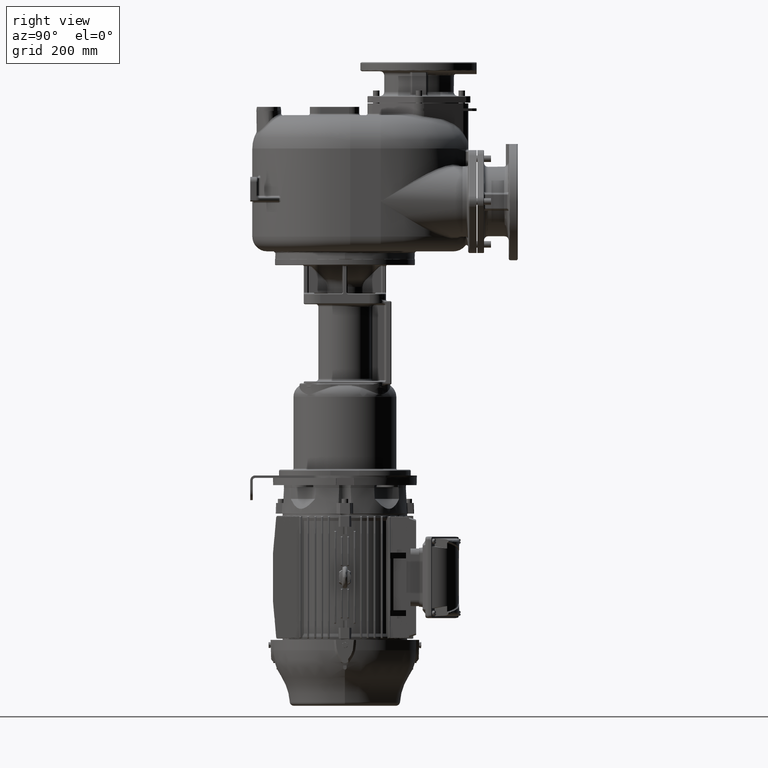
[diagram: clean part render]
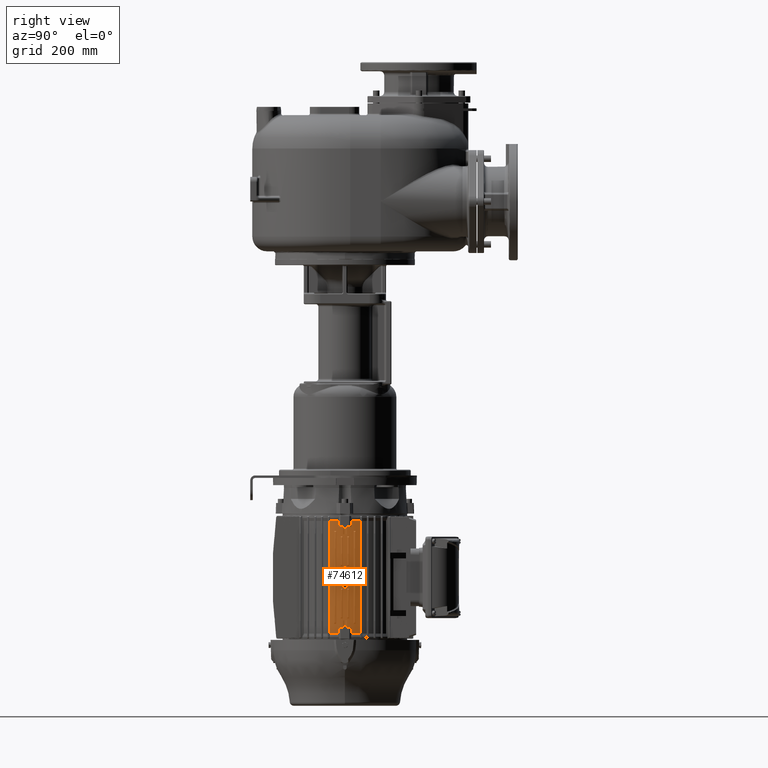
[diagram: same view with one face highlighted and labeled with its STEP entity id]
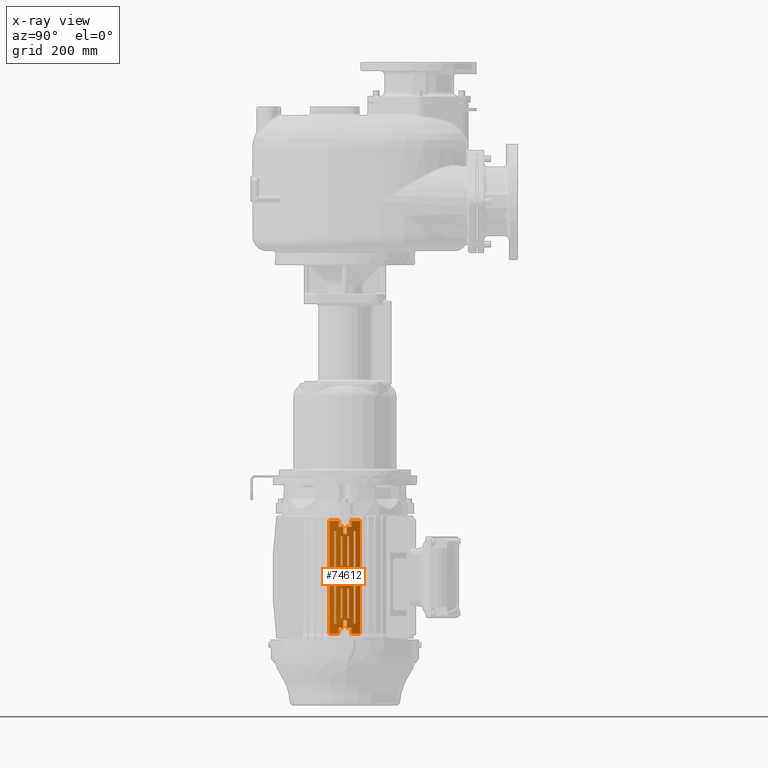
[diagram: x-ray of the same camera — body ghosted, the highlighted face saturated]
A machine part, right view. The second image highlights one B-rep face of the part: STEP entity #74612.
The next image is the same camera in x-ray: the body ghosted, the highlighted face saturated — about 0% of this face is hidden behind the body in this view.
In plain terms, the highlighted cylindrical surface (partial cylindrical patch) has radius 149.5 mm, axis along (0, 0, -1).
Its self-contained STEP definition (entity closure, byte-faithful):
#13514=CARTESIAN_POINT('',(0.E0,2.29E2,-1.084966056846E3));
#13515=DIRECTION('',(0.E0,0.E0,-1.E0));
#13516=DIRECTION('',(9.945120519929E-1,-1.046220743477E-1,0.E0));
#13517=AXIS2_PLACEMENT_3D('',#13514,#13515,#13516);
#13524=CARTESIAN_POINT('',(1.486795517729E2,2.133589998850E2,
-1.084966056846E3));
#13538=DIRECTION('',(0.E0,0.E0,-1.E0));
#13539=VECTOR('',#13538,1.426605684588E1);
#13540=CARTESIAN_POINT('',(1.486795517729E2,2.446410001150E2,-1.0707E3));
#13541=LINE('',#13540,#13539);
#13542=DIRECTION('',(0.E0,0.E0,1.E0));
#13543=VECTOR('',#13542,1.426605684588E1);
#13544=CARTESIAN_POINT('',(1.486795517729E2,2.133589998850E2,
-1.084966056846E3));
#13545=LINE('',#13544,#13543);
#13546=DIRECTION('',(0.E0,0.E0,-1.E0));
#13547=VECTOR('',#13546,2.739321136918E2);
#13548=CARTESIAN_POINT('',(1.448180231175E2,1.918787098778E2,
-8.110339431541E2));
#13549=LINE('',#13548,#13547);
#13550=DIRECTION('',(0.E0,0.E0,1.E0));
#13551=VECTOR('',#13550,1.426605684588E1);
#13552=CARTESIAN_POINT('',(1.486795517729E2,2.133589998850E2,-8.253E2));
#13553=LINE('',#13552,#13551);
#13554=DIRECTION('',(0.E0,0.E0,1.E0));
#13555=VECTOR('',#13554,1.8E1);
#13556=CARTESIAN_POINT('',(1.494283489097E2,2.243719829156E2,-8.433E2));
#13557=LINE('',#13556,#13555);
#13558=DIRECTION('',(0.E0,0.E0,-1.E0));
#13559=VECTOR('',#13558,1.8E1);
#13560=CARTESIAN_POINT('',(1.494283489097E2,2.336280170844E2,-8.253E2));
#13561=LINE('',#13560,#13559);
#13562=DIRECTION('',(0.E0,0.E0,-1.E0));
#13563=VECTOR('',#13562,1.426605684588E1);
#13564=CARTESIAN_POINT('',(1.486795517729E2,2.446410001150E2,
-8.110339431541E2));
#13565=LINE('',#13564,#13563);
#13566=DIRECTION('',(0.E0,0.E0,1.E0));
#13567=VECTOR('',#13566,2.739321136918E2);
#13568=CARTESIAN_POINT('',(1.448180231175E2,2.661212901222E2,
-1.084966056846E3));
#13569=LINE('',#13568,#13567);
#13570=DIRECTION('',(0.E0,0.E0,-1.E0));
#13571=VECTOR('',#13570,7.172442220392E1);
#13572=CARTESIAN_POINT('',(1.493969431341E2,2.234499205249E2,-8.485E2));
#13573=LINE('',#13572,#13571);
#13574=DIRECTION('',(0.E0,0.E0,1.E0));
#13575=VECTOR('',#13574,7.174607287128E1);
#13576=CARTESIAN_POINT('',(1.491494748738E2,2.187684729948E2,
-9.202460728713E2));
#13577=LINE('',#13576,#13575);
#13578=DIRECTION('',(0.E0,0.E0,-1.E0));
#13579=VECTOR('',#13578,7.174607287128E1);
#13580=CARTESIAN_POINT('',(1.491494748738E2,2.392315270052E2,-8.485E2));
#13581=LINE('',#13580,#13579);
#13582=DIRECTION('',(0.E0,0.E0,1.E0));
#13583=VECTOR('',#13582,7.172442220392E1);
#13584=CARTESIAN_POINT('',(1.493969431341E2,2.345500794751E2,
-9.202244222039E2));
#13585=LINE('',#13584,#13583);
#13586=DIRECTION('',(0.E0,0.E0,1.E0));
#13587=VECTOR('',#13586,7.174607287128E1);
#13588=CARTESIAN_POINT('',(1.491494748738E2,2.187684729948E2,-1.0475E3));
#13589=LINE('',#13588,#13587);
#13590=DIRECTION('',(0.E0,0.E0,-1.E0));
#13591=VECTOR('',#13590,7.172442220392E1);
#13592=CARTESIAN_POINT('',(1.493969431341E2,2.234499205249E2,
-9.757755777961E2));
#13593=LINE('',#13592,#13591);
#13594=DIRECTION('',(0.E0,0.E0,1.E0));
#13595=VECTOR('',#13594,7.172442220392E1);
#13596=CARTESIAN_POINT('',(1.493969431341E2,2.345500794751E2,-1.0475E3));
#13597=LINE('',#13596,#13595);
#13598=DIRECTION('',(0.E0,0.E0,-1.E0));
#13599=VECTOR('',#13598,7.174607287128E1);
#13600=CARTESIAN_POINT('',(1.491494748738E2,2.392315270052E2,
-9.757539271287E2));
#13601=LINE('',#13600,#13599);
#13602=DIRECTION('',(0.E0,0.E0,1.E0));
#13603=VECTOR('',#13602,2.622055537209E1);
#13604=CARTESIAN_POINT('',(1.487767269245E2,2.143120618995E2,
-9.611102776860E2));
#13605=LINE('',#13604,#13603);
#13606=CARTESIAN_POINT('',(1.487767269245E2,2.436879381005E2,
-9.611102776860E2));
#13607=CARTESIAN_POINT('',(1.487873028285E2,2.435808128948E2,
-9.612289045936E2));
#13608=CARTESIAN_POINT('',(1.488085030701E2,2.433637060167E2,
-9.614635083399E2));
#13609=CARTESIAN_POINT('',(1.488404010850E2,2.430293816895E2,
-9.618075622012E2));
#13610=CARTESIAN_POINT('',(1.488723134301E2,2.426866624096E2,
-9.621434696467E2));
#13611=CARTESIAN_POINT('',(1.489041620329E2,2.423357732816E2,
-9.624710051180E2));
#13612=CARTESIAN_POINT('',(1.489358712476E2,2.419769199331E2,
-9.627899714574E2));
#13613=CARTESIAN_POINT('',(1.489673647090E2,2.416103253593E2,
-9.631001662790E2));
#13614=CARTESIAN_POINT('',(1.489985664947E2,2.412362197539E2,
-9.634013923824E2));
#13615=CARTESIAN_POINT('',(1.490294014444E2,2.408548389919E2,
-9.636934591088E2));
#13616=CARTESIAN_POINT('',(1.490597953976E2,2.404664239788E2,
-9.639761828662E2));
#13617=CARTESIAN_POINT('',(1.490896754832E2,2.400712191108E2,
-9.642493880976E2));
#13618=CARTESIAN_POINT('',(1.491189702110E2,2.396694731708E2,
-9.645129064344E2));
#13619=CARTESIAN_POINT('',(1.491476097552E2,2.392614376410E2,
-9.647665776893E2));
#13620=CARTESIAN_POINT('',(1.491755260073E2,2.388473678436E2,
-9.650102487670E2));
#13621=CARTESIAN_POINT('',(1.492026527111E2,2.384275238543E2,
-9.652437735503E2));
#13622=CARTESIAN_POINT('',(1.492289263352E2,2.380021569897E2,
-9.654670187553E2));
#13623=CARTESIAN_POINT('',(1.492542827104E2,2.375715714713E2,
-9.656798347487E2));
#13624=CARTESIAN_POINT('',(1.492786683693E2,2.371359281508E2,
-9.658821488084E2));
#13625=CARTESIAN_POINT('',(1.493020176074E2,2.366956440133E2,
-9.660737726124E2));
#13626=CARTESIAN_POINT('',(1.493242525003E2,2.362514846123E2,
-9.662544088734E2));
#13627=CARTESIAN_POINT('',(1.493453165151E2,2.358039600869E2,
-9.664239248941E2));
#13628=CARTESIAN_POINT('',(1.493651985988E2,2.353526437920E2,
-9.665825334887E2));
#13629=CARTESIAN_POINT('',(1.493838705018E2,2.348973686132E2,
-9.667302842246E2));
#13630=CARTESIAN_POINT('',(1.494012742101E2,2.344387493659E2,
-9.668669746612E2));
#13631=CARTESIAN_POINT('',(1.494173860486E2,2.339766026607E2,
-9.669926563414E2));
#13632=CARTESIAN_POINT('',(1.494321712100E2,2.335109886444E2,
-9.671072736853E2));
#13633=CARTESIAN_POINT('',(1.494455795677E2,2.330425603153E2,
-9.672106361926E2));
#13634=CARTESIAN_POINT('',(1.494575694900E2,2.325719896885E2,
-9.673026034525E2));
#13635=CARTESIAN_POINT('',(1.494681199610E2,2.320993394828E2,
-9.673831748948E2));
#13636=CARTESIAN_POINT('',(1.494772052532E2,2.316249558014E2,
-9.674522942966E2));
#13637=CARTESIAN_POINT('',(1.494848056460E2,2.311490896034E2,
-9.675099320109E2));
#13638=CARTESIAN_POINT('',(1.494909041068E2,2.306720137247E2,
-9.675560591138E2));
#13639=CARTESIAN_POINT('',(1.494954871082E2,2.301939961403E2,
-9.675906534779E2));
#13640=CARTESIAN_POINT('',(1.494985444551E2,2.297153091516E2,
-9.676136982515E2));
#13641=CARTESIAN_POINT('',(1.495000693847E2,2.292362164821E2,
-9.676251824836E2));
#13642=CARTESIAN_POINT('',(1.495000585380E2,2.287569786725E2,
-9.676251008218E2));
#13643=CARTESIAN_POINT('',(1.494985116295E2,2.282779284107E2,
-9.676134509679E2));
#13644=CARTESIAN_POINT('',(1.494954370776E2,2.277998757445E2,
-9.675902761272E2));
#13645=CARTESIAN_POINT('',(1.494908458874E2,2.273228942670E2,
-9.675556192015E2));
#13646=CARTESIAN_POINT('',(1.494847478157E2,2.268469852345E2,
-9.675094939702E2));
#13647=CARTESIAN_POINT('',(1.494771601440E2,2.263725783736E2,
-9.674519514709E2));
#13648=CARTESIAN_POINT('',(1.494681030873E2,2.258999254346E2,
-9.673830459800E2));
#13649=CARTESIAN_POINT('',(1.494575771660E2,2.254283564531E2,
-9.673026620287E2));
#13650=CARTESIAN_POINT('',(1.494455946602E2,2.249580005178E2,
-9.672107521950E2));
#13651=CARTESIAN_POINT('',(1.494321906342E2,2.244896559768E2,
-9.671074238009E2));
#13652=CARTESIAN_POINT('',(1.494174025826E2,2.240238801047E2,
-9.669927851126E2));
#13653=CARTESIAN_POINT('',(1.494012647974E2,2.235609615593E2,
-9.668669016928E2));
#13654=CARTESIAN_POINT('',(1.493838125439E2,2.231011325982E2,
-9.667298282997E2));
#13655=CARTESIAN_POINT('',(1.493650861809E2,2.226446822598E2,
-9.665816416443E2));
#13656=CARTESIAN_POINT('',(1.493451282209E2,2.221918735743E2,
-9.664224180791E2));
#13657=CARTESIAN_POINT('',(1.493239847812E2,2.217429840295E2,
-9.662522457093E2));
#13658=CARTESIAN_POINT('',(1.493017045064E2,2.212982807811E2,
-9.660712166234E2));
#13659=CARTESIAN_POINT('',(1.492783389457E2,2.208580322610E2,
-9.658794306850E2));
#13660=CARTESIAN_POINT('',(1.492539423897E2,2.204225059216E2,
-9.656769951444E2));
#13661=CARTESIAN_POINT('',(1.492285717606E2,2.199919680418E2,
-9.654640247176E2));
#13662=CARTESIAN_POINT('',(1.492022864983E2,2.195666834047E2,
-9.652406417034E2));
#13663=CARTESIAN_POINT('',(1.491751484041E2,2.191469146481E2,
-9.650069757942E2));
#13664=CARTESIAN_POINT('',(1.491472217663E2,2.187329256773E2,
-9.647631664476E2));
#13665=CARTESIAN_POINT('',(1.491185726169E2,2.183249724810E2,
-9.645093577203E2));
#13666=CARTESIAN_POINT('',(1.490892693841E2,2.179233146158E2,
-9.642457053984E2));
#13667=CARTESIAN_POINT('',(1.490593815043E2,2.175281977648E2,
-9.639723661091E2));
#13668=CARTESIAN_POINT('',(1.490289811538E2,2.171398800387E2,
-9.636895141062E2));
#13669=CARTESIAN_POINT('',(1.489981417842E2,2.167586099070E2,
-9.633973317367E2));
#13670=CARTESIAN_POINT('',(1.489669327016E2,2.163845756762E2,
-9.630959526655E2));
#13671=CARTESIAN_POINT('',(1.489354993359E2,2.160188252041E2,
-9.627862621643E2));
#13672=CARTESIAN_POINT('',(1.489039321061E2,2.156616759261E2,
-9.624686550037E2));
#13673=CARTESIAN_POINT('',(1.488722261251E2,2.153123988415E2,
-9.621425520426E2));
#13674=CARTESIAN_POINT('',(1.488403910606E2,2.149705151890E2,
-9.618074520892E2));
#13675=CARTESIAN_POINT('',(1.488085060037E2,2.146363245785E2,
-9.614635400413E2));
#13676=CARTESIAN_POINT('',(1.487873069809E2,2.144192291650E2,
-9.612289511692E2));
#13677=CARTESIAN_POINT('',(1.487767269245E2,2.143120618995E2,
-9.611102776860E2));
#13679=DIRECTION('',(0.E0,0.E0,-1.E0));
#13680=VECTOR('',#13679,2.622055537209E1);
#13681=CARTESIAN_POINT('',(1.487767269245E2,2.436879381005E2,
-9.348897223140E2));
#13682=LINE('',#13681,#13680);
#13683=CARTESIAN_POINT('',(1.487767269245E2,2.143120618995E2,
-9.348897223140E2));
#13684=CARTESIAN_POINT('',(1.487873028285E2,2.144191871052E2,
-9.347710954064E2));
#13685=CARTESIAN_POINT('',(1.488085030701E2,2.146362939833E2,
-9.345364916601E2));
#13686=CARTESIAN_POINT('',(1.488404010850E2,2.149706183105E2,
-9.341924377988E2));
#13687=CARTESIAN_POINT('',(1.488723134301E2,2.153133375904E2,
-9.338565303533E2));
#13688=CARTESIAN_POINT('',(1.489041620329E2,2.156642267184E2,
-9.335289948820E2));
#13689=CARTESIAN_POINT('',(1.489358712476E2,2.160230800669E2,
-9.332100285426E2));
#13690=CARTESIAN_POINT('',(1.489673647090E2,2.163896746407E2,
-9.328998337210E2));
#13691=CARTESIAN_POINT('',(1.489985664947E2,2.167637802461E2,
-9.325986076176E2));
#13692=CARTESIAN_POINT('',(1.490294014444E2,2.171451610081E2,
-9.323065408912E2));
#13693=CARTESIAN_POINT('',(1.490597953976E2,2.175335760212E2,
-9.320238171338E2));
#13694=CARTESIAN_POINT('',(1.490896754832E2,2.179287808892E2,
-9.317506119024E2));
#13695=CARTESIAN_POINT('',(1.491189702110E2,2.183305268292E2,
-9.314870935656E2));
#13696=CARTESIAN_POINT('',(1.491476097552E2,2.187385623590E2,
-9.312334223107E2));
#13697=CARTESIAN_POINT('',(1.491755260073E2,2.191526321564E2,
-9.309897512330E2));
#13698=CARTESIAN_POINT('',(1.492026527111E2,2.195724761457E2,
-9.307562264497E2));
#13699=CARTESIAN_POINT('',(1.492289263352E2,2.199978430103E2,
-9.305329812447E2));
#13700=CARTESIAN_POINT('',(1.492542827104E2,2.204284285287E2,
-9.303201652513E2));
#13701=CARTESIAN_POINT('',(1.492786683693E2,2.208640718492E2,
-9.301178511916E2));
#13702=CARTESIAN_POINT('',(1.493020176074E2,2.213043559867E2,
-9.299262273876E2));
#13703=CARTESIAN_POINT('',(1.493242525003E2,2.217485153877E2,
-9.297455911266E2));
#13704=CARTESIAN_POINT('',(1.493453165151E2,2.221960399131E2,
-9.295760751059E2));
#13705=CARTESIAN_POINT('',(1.493651985988E2,2.226473562080E2,
-9.294174665113E2));
#13706=CARTESIAN_POINT('',(1.493838705018E2,2.231026313868E2,
-9.292697157754E2));
#13707=CARTESIAN_POINT('',(1.494012742101E2,2.235612506341E2,
-9.291330253388E2));
#13708=CARTESIAN_POINT('',(1.494173860486E2,2.240233973393E2,
-9.290073436586E2));
#13709=CARTESIAN_POINT('',(1.494321712100E2,2.244890113556E2,
-9.288927263147E2));
#13710=CARTESIAN_POINT('',(1.494455795677E2,2.249574396847E2,
-9.287893638074E2));
#13711=CARTESIAN_POINT('',(1.494575694900E2,2.254280103115E2,
-9.286973965475E2));
#13712=CARTESIAN_POINT('',(1.494681199610E2,2.259006605172E2,
-9.286168251052E2));
#13713=CARTESIAN_POINT('',(1.494772052532E2,2.263750441986E2,
-9.285477057034E2));
#13714=CARTESIAN_POINT('',(1.494848056460E2,2.268509103966E2,
-9.284900679891E2));
#13715=CARTESIAN_POINT('',(1.494909041068E2,2.273279862753E2,
-9.284439408862E2));
#13716=CARTESIAN_POINT('',(1.494954871082E2,2.278060038597E2,
-9.284093465221E2));
#13717=CARTESIAN_POINT('',(1.494985444551E2,2.282846908484E2,
-9.283863017485E2));
#13718=CARTESIAN_POINT('',(1.495000693847E2,2.287637835179E2,
-9.283748175164E2));
#13719=CARTESIAN_POINT('',(1.495000585380E2,2.292430213275E2,
-9.283748991782E2));
#13720=CARTESIAN_POINT('',(1.494985116295E2,2.297220715893E2,
-9.283865490321E2));
#13721=CARTESIAN_POINT('',(1.494954370776E2,2.302001242555E2,
-9.284097238728E2));
#13722=CARTESIAN_POINT('',(1.494908458874E2,2.306771057330E2,
-9.284443807985E2));
#13723=CARTESIAN_POINT('',(1.494847478157E2,2.311530147655E2,
-9.284905060298E2));
#13724=CARTESIAN_POINT('',(1.494771601440E2,2.316274216264E2,
-9.285480485291E2));
#13725=CARTESIAN_POINT('',(1.494681030873E2,2.321000745654E2,
-9.286169540200E2));
#13726=CARTESIAN_POINT('',(1.494575771660E2,2.325716435469E2,
-9.286973379713E2));
#13727=CARTESIAN_POINT('',(1.494455946602E2,2.330419994822E2,
-9.287892478050E2));
#13728=CARTESIAN_POINT('',(1.494321906342E2,2.335103440232E2,
-9.288925761991E2));
#13729=CARTESIAN_POINT('',(1.494174025826E2,2.339761198953E2,
-9.290072148874E2));
#13730=CARTESIAN_POINT('',(1.494012647974E2,2.344390384407E2,
-9.291330983072E2));
#13731=CARTESIAN_POINT('',(1.493838125439E2,2.348988674018E2,
-9.292701717003E2));
#13732=CARTESIAN_POINT('',(1.493650861809E2,2.353553177402E2,
-9.294183583557E2));
#13733=CARTESIAN_POINT('',(1.493451282209E2,2.358081264257E2,
-9.295775819209E2));
#13734=CARTESIAN_POINT('',(1.493239847812E2,2.362570159705E2,
-9.297477542907E2));
#13735=CARTESIAN_POINT('',(1.493017045064E2,2.367017192188E2,
-9.299287833766E2));
#13736=CARTESIAN_POINT('',(1.492783389457E2,2.371419677390E2,
-9.301205693150E2));
#13737=CARTESIAN_POINT('',(1.492539423897E2,2.375774940784E2,
-9.303230048556E2));
#13738=CARTESIAN_POINT('',(1.492285717606E2,2.380080319582E2,
-9.305359752824E2));
#13739=CARTESIAN_POINT('',(1.492022864983E2,2.384333165953E2,
-9.307593582966E2));
#13740=CARTESIAN_POINT('',(1.491751484041E2,2.388530853519E2,
-9.309930242058E2));
#13741=CARTESIAN_POINT('',(1.491472217663E2,2.392670743227E2,
-9.312368335524E2));
#13742=CARTESIAN_POINT('',(1.491185726169E2,2.396750275190E2,
-9.314906422797E2));
#13743=CARTESIAN_POINT('',(1.490892693841E2,2.400766853842E2,
-9.317542946016E2));
#13744=CARTESIAN_POINT('',(1.490593815043E2,2.404718022352E2,
-9.320276338909E2));
#13745=CARTESIAN_POINT('',(1.490289811538E2,2.408601199613E2,
-9.323104858938E2));
#13746=CARTESIAN_POINT('',(1.489981417842E2,2.412413900930E2,
-9.326026682633E2));
#13747=CARTESIAN_POINT('',(1.489669327016E2,2.416154243239E2,
-9.329040473345E2));
#13748=CARTESIAN_POINT('',(1.489354993359E2,2.419811747959E2,
-9.332137378357E2));
#13749=CARTESIAN_POINT('',(1.489039321061E2,2.423383240739E2,
-9.335313449963E2));
#13750=CARTESIAN_POINT('',(1.488722261251E2,2.426876011585E2,
-9.338574479574E2));
#13751=CARTESIAN_POINT('',(1.488403910606E2,2.430294848110E2,
-9.341925479108E2));
#13752=CARTESIAN_POINT('',(1.488085060037E2,2.433636754215E2,
-9.345364599587E2));
#13753=CARTESIAN_POINT('',(1.487873069809E2,2.435807708350E2,
-9.347710488308E2));
#13754=CARTESIAN_POINT('',(1.487767269245E2,2.436879381005E2,
-9.348897223140E2));
#13756=DIRECTION('',(0.E0,0.E0,-1.E0));
#13757=VECTOR('',#13756,2.25E2);
#13758=CARTESIAN_POINT('',(1.479779885949E2,2.077217272459E2,-8.355E2));
#13759=LINE('',#13758,#13757);
#13760=DIRECTION('',(0.E0,0.E0,1.E0));
#13761=VECTOR('',#13760,2.25E2);
#13762=CARTESIAN_POINT('',(1.472259904390E2,2.030239006152E2,-1.0605E3));
#13763=LINE('',#13762,#13761);
#13764=DIRECTION('',(0.E0,0.E0,-1.E0));
#13765=VECTOR('',#13764,2.25E2);
#13766=CARTESIAN_POINT('',(1.472259904390E2,2.549760993848E2,-8.355E2));
#13767=LINE('',#13766,#13765);
#13768=DIRECTION('',(0.E0,0.E0,1.E0));
#13769=VECTOR('',#13768,2.25E2);
#13770=CARTESIAN_POINT('',(1.479779885949E2,2.502782727541E2,-1.0605E3));
#13771=LINE('',#13770,#13769);
#13777=CARTESIAN_POINT('',(1.486795517729E2,2.446410001150E2,
-1.084966056846E3));
#13784=CARTESIAN_POINT('',(0.E0,2.29E2,-1.084966056846E3));
#13785=DIRECTION('',(0.E0,0.E0,-1.E0));
#13786=DIRECTION('',(9.686824288797E-1,2.483029439611E-1,0.E0));
#13787=AXIS2_PLACEMENT_3D('',#13784,#13785,#13786);
#13794=CARTESIAN_POINT('',(1.448180231175E2,2.661212901222E2,
-1.084966056846E3));
#13808=CARTESIAN_POINT('',(0.E0,2.29E2,-1.0707E3));
#13809=DIRECTION('',(0.E0,0.E0,-1.E0));
#13810=DIRECTION('',(9.995207284927E-1,-3.095663601621E-2,0.E0));
#13811=AXIS2_PLACEMENT_3D('',#13808,#13809,#13810);
#13818=CARTESIAN_POINT('',(0.E0,2.29E2,-1.0707E3));
#13819=DIRECTION('',(0.E0,0.E0,-1.E0));
#13820=DIRECTION('',(9.945120519929E-1,1.046220743477E-1,0.E0));
#13821=AXIS2_PLACEMENT_3D('',#13818,#13819,#13820);
#13827=DIRECTION('',(0.E0,0.E0,-1.E0));
#13828=VECTOR('',#13827,1.8E1);
#13829=CARTESIAN_POINT('',(1.494283489097E2,2.243719829156E2,-1.0527E3));
#13830=LINE('',#13829,#13828);
#13831=DIRECTION('',(0.E0,0.E0,1.E0));
#13832=VECTOR('',#13831,1.8E1);
#13833=CARTESIAN_POINT('',(1.494283489097E2,2.336280170844E2,-1.0707E3));
#13834=LINE('',#13833,#13832);
#13840=CARTESIAN_POINT('',(0.E0,2.29E2,-1.0527E3));
#13841=DIRECTION('',(0.E0,0.E0,-1.E0));
#13842=DIRECTION('',(9.995207284927E-1,3.095663601621E-2,0.E0));
#13843=AXIS2_PLACEMENT_3D('',#13840,#13841,#13842);
#27157=CARTESIAN_POINT('',(0.E0,2.29E2,-8.110339431541E2));
#27158=DIRECTION('',(0.E0,0.E0,1.E0));
#27159=DIRECTION('',(9.945120519929E-1,1.046220743477E-1,0.E0));
#27160=AXIS2_PLACEMENT_3D('',#27157,#27158,#27159);
#27167=CARTESIAN_POINT('',(1.486795517729E2,2.446410001150E2,
-8.110339431541E2));
#27174=CARTESIAN_POINT('',(1.448180231175E2,2.661212901222E2,
-8.110339431541E2));
#27189=CARTESIAN_POINT('',(0.E0,2.29E2,-8.253E2));
#27190=DIRECTION('',(0.E0,0.E0,1.E0));
#27191=DIRECTION('',(9.995207284927E-1,3.095663601621E-2,0.E0));
#27192=AXIS2_PLACEMENT_3D('',#27189,#27190,#27191);
#27199=CARTESIAN_POINT('',(0.E0,2.29E2,-8.253E2));
#27200=DIRECTION('',(0.E0,0.E0,1.E0));
#27201=DIRECTION('',(9.945120519929E-1,-1.046220743477E-1,0.E0));
#27202=AXIS2_PLACEMENT_3D('',#27199,#27200,#27201);
#27217=CARTESIAN_POINT('',(0.E0,2.29E2,-8.433E2));
#27218=DIRECTION('',(0.E0,0.E0,1.E0));
#27219=DIRECTION('',(9.995207284927E-1,-3.095663601621E-2,0.E0));
#27220=AXIS2_PLACEMENT_3D('',#27217,#27218,#27219);
#27322=CARTESIAN_POINT('',(1.486795517729E2,2.133589998850E2,
-8.110339431541E2));
#27329=CARTESIAN_POINT('',(0.E0,2.29E2,-8.110339431541E2));
#27330=DIRECTION('',(0.E0,0.E0,1.E0));
#27331=DIRECTION('',(9.686824288797E-1,-2.483029439611E-1,0.E0));
#27332=AXIS2_PLACEMENT_3D('',#27329,#27330,#27331);
#29043=CARTESIAN_POINT('',(1.491494748738E2,2.187684729948E2,
-9.202460728713E2));
#29044=CARTESIAN_POINT('',(1.492564332360E2,2.203276521422E2,
-9.202367152271E2));
#29045=CARTESIAN_POINT('',(1.493389229657E2,2.218881346358E2,
-9.202294983109E2));
#29046=CARTESIAN_POINT('',(1.493969431341E2,2.234499205249E2,
-9.202244222039E2));
#29064=CARTESIAN_POINT('',(1.491494748738E2,2.187684729948E2,-8.485E2));
#29071=CARTESIAN_POINT('',(0.E0,2.29E2,-8.485E2));
#29072=DIRECTION('',(0.E0,0.E0,-1.E0));
#29073=DIRECTION('',(9.993106564155E-1,-3.712427742508E-2,0.E0));
#29074=AXIS2_PLACEMENT_3D('',#29071,#29072,#29073);
#29081=CARTESIAN_POINT('',(1.493969431341E2,2.234499205249E2,-8.485E2));
#29111=CARTESIAN_POINT('',(1.493969431341E2,2.345500794751E2,
-9.202244222039E2));
#29112=CARTESIAN_POINT('',(1.493389229657E2,2.361118653642E2,
-9.202294983109E2));
#29113=CARTESIAN_POINT('',(1.492564332360E2,2.376723478578E2,
-9.202367152271E2));
#29114=CARTESIAN_POINT('',(1.491494748738E2,2.392315270052E2,
-9.202460728713E2));
#29128=CARTESIAN_POINT('',(1.493969431341E2,2.345500794751E2,-8.485E2));
#29135=CARTESIAN_POINT('',(0.E0,2.29E2,-8.485E2));
#29136=DIRECTION('',(0.E0,0.E0,-1.E0));
#29137=DIRECTION('',(9.976553503267E-1,6.843830772684E-2,0.E0));
#29138=AXIS2_PLACEMENT_3D('',#29135,#29136,#29137);
#29145=CARTESIAN_POINT('',(1.491494748738E2,2.392315270052E2,-8.485E2));
#29183=CARTESIAN_POINT('',(1.493969431341E2,2.234499205249E2,
-9.757755777961E2));
#29184=CARTESIAN_POINT('',(1.493389229657E2,2.218881346358E2,
-9.757705016891E2));
#29185=CARTESIAN_POINT('',(1.492564332360E2,2.203276521422E2,
-9.757632847729E2));
#29186=CARTESIAN_POINT('',(1.491494748738E2,2.187684729948E2,
-9.757539271287E2));
#29203=CARTESIAN_POINT('',(0.E0,2.29E2,-1.0475E3));
#29204=DIRECTION('',(0.E0,0.E0,1.E0));
#29205=DIRECTION('',(9.976553503267E-1,-6.843830772684E-2,0.E0));
#29206=AXIS2_PLACEMENT_3D('',#29203,#29204,#29205);
#29274=CARTESIAN_POINT('',(0.E0,2.29E2,-1.0475E3));
#29275=DIRECTION('',(0.E0,0.E0,1.E0));
#29276=DIRECTION('',(9.993106564155E-1,3.712427742508E-2,0.E0));
#29277=AXIS2_PLACEMENT_3D('',#29274,#29275,#29276);
#29318=CARTESIAN_POINT('',(1.491494748738E2,2.392315270052E2,
-9.757539271287E2));
#29319=CARTESIAN_POINT('',(1.492564332360E2,2.376723478578E2,
-9.757632847729E2));
#29320=CARTESIAN_POINT('',(1.493389229657E2,2.361118653642E2,
-9.757705016891E2));
#29321=CARTESIAN_POINT('',(1.493969431341E2,2.345500794751E2,
-9.757755777961E2));
#29336=CARTESIAN_POINT('',(1.487767269245E2,2.143120618995E2,
-9.348897223140E2));
#29622=CARTESIAN_POINT('',(1.487767269245E2,2.436879381005E2,
-9.348897223140E2));
#29633=CARTESIAN_POINT('',(1.487767269245E2,2.436879381005E2,
-9.611102776860E2));
#29653=CARTESIAN_POINT('',(1.487767269245E2,2.143120618995E2,
-9.611102776860E2));
#30009=CARTESIAN_POINT('',(1.472259904390E2,2.030239006152E2,-8.355E2));
#30018=CARTESIAN_POINT('',(0.E0,2.29E2,-8.355E2));
#30019=DIRECTION('',(0.E0,0.E0,-1.E0));
#30020=DIRECTION('',(9.898193217053E-1,-1.423295836393E-1,0.E0));
#30021=AXIS2_PLACEMENT_3D('',#30018,#30019,#30020);
#30028=CARTESIAN_POINT('',(1.479779885949E2,2.077217272459E2,-8.355E2));
#30063=CARTESIAN_POINT('',(1.479779885949E2,2.077217272459E2,-1.0605E3));
#30070=CARTESIAN_POINT('',(0.E0,2.29E2,-1.0605E3));
#30071=DIRECTION('',(0.E0,0.E0,1.E0));
#30072=DIRECTION('',(9.847892337059E-1,-1.737531731421E-1,0.E0));
#30073=AXIS2_PLACEMENT_3D('',#30070,#30071,#30072);
#30082=CARTESIAN_POINT('',(1.472259904390E2,2.030239006152E2,-1.0605E3));
#30109=CARTESIAN_POINT('',(1.479779885949E2,2.502782727541E2,-8.355E2));
#30116=CARTESIAN_POINT('',(0.E0,2.29E2,-8.355E2));
#30117=DIRECTION('',(0.E0,0.E0,-1.E0));
#30118=DIRECTION('',(9.847892337059E-1,1.737531731421E-1,0.E0));
#30119=AXIS2_PLACEMENT_3D('',#30116,#30117,#30118);
#30128=CARTESIAN_POINT('',(1.472259904390E2,2.549760993848E2,-8.355E2));
#30163=CARTESIAN_POINT('',(1.472259904390E2,2.549760993848E2,-1.0605E3));
#30172=CARTESIAN_POINT('',(0.E0,2.29E2,-1.0605E3));
#30173=DIRECTION('',(0.E0,0.E0,1.E0));
#30174=DIRECTION('',(9.898193217053E-1,1.423295836393E-1,0.E0));
#30175=AXIS2_PLACEMENT_3D('',#30172,#30173,#30174);
#30182=CARTESIAN_POINT('',(1.479779885949E2,2.502782727541E2,-1.0605E3));
#59806=VERTEX_POINT('',#13524);
#59809=VERTEX_POINT('',#13777);
#59811=CARTESIAN_POINT('',(1.486795517729E2,2.133589998850E2,-1.0707E3));
#59812=VERTEX_POINT('',#59811);
#59842=CARTESIAN_POINT('',(1.486795517729E2,2.446410001150E2,-1.0707E3));
#59843=VERTEX_POINT('',#59842);
#60043=CARTESIAN_POINT('',(1.486795517729E2,2.446410001150E2,-8.253E2));
#60044=VERTEX_POINT('',#60043);
#60084=VERTEX_POINT('',#27167);
#60098=VERTEX_POINT('',#27322);
#60101=CARTESIAN_POINT('',(1.486795517729E2,2.133589998850E2,-8.253E2));
#60103=VERTEX_POINT('',#60101);
#60259=CARTESIAN_POINT('',(1.493969431341E2,2.234499205249E2,
-9.202244222039E2));
#60260=VERTEX_POINT('',#60259);
#60262=VERTEX_POINT('',#29081);
#60265=VERTEX_POINT('',#30128);
#60270=VERTEX_POINT('',#30163);
#60274=VERTEX_POINT('',#30028);
#60276=VERTEX_POINT('',#30109);
#60277=VERTEX_POINT('',#30182);
#60278=VERTEX_POINT('',#30063);
#60281=CARTESIAN_POINT('',(1.493969431341E2,2.345500794751E2,
-9.202244222039E2));
#60283=VERTEX_POINT('',#60281);
#60287=VERTEX_POINT('',#29128);
#60289=VERTEX_POINT('',#30009);
#60291=VERTEX_POINT('',#30082);
#60296=VERTEX_POINT('',#29064);
#60305=CARTESIAN_POINT('',(1.491494748738E2,2.392315270052E2,
-9.202460728713E2));
#60306=VERTEX_POINT('',#60305);
#60308=VERTEX_POINT('',#29145);
#60314=CARTESIAN_POINT('',(1.491494748738E2,2.187684729948E2,
-9.202460728713E2));
#60315=VERTEX_POINT('',#60314);
#60756=CARTESIAN_POINT('',(1.494283489097E2,2.243719829156E2,-8.253E2));
#60757=CARTESIAN_POINT('',(1.494283489097E2,2.336280170844E2,-8.253E2));
#60758=VERTEX_POINT('',#60756);
#60759=VERTEX_POINT('',#60757);
#60761=CARTESIAN_POINT('',(1.494283489097E2,2.243719829156E2,-1.0527E3));
#60762=CARTESIAN_POINT('',(1.494283489097E2,2.336280170844E2,-1.0527E3));
#60763=VERTEX_POINT('',#60761);
#60764=VERTEX_POINT('',#60762);
#60782=CARTESIAN_POINT('',(1.494283489097E2,2.336280170844E2,-8.433E2));
#60783=CARTESIAN_POINT('',(1.494283489097E2,2.243719829156E2,-8.433E2));
#60784=VERTEX_POINT('',#60782);
#60785=VERTEX_POINT('',#60783);
#60796=CARTESIAN_POINT('',(1.494283489097E2,2.336280170844E2,-1.0707E3));
#60797=CARTESIAN_POINT('',(1.494283489097E2,2.243719829156E2,-1.0707E3));
#60798=VERTEX_POINT('',#60796);
#60799=VERTEX_POINT('',#60797);
#60948=VERTEX_POINT('',#29633);
#60977=VERTEX_POINT('',#29622);
#60979=VERTEX_POINT('',#29653);
#61003=VERTEX_POINT('',#29336);
#61134=CARTESIAN_POINT('',(1.491494748738E2,2.187684729948E2,
-9.757539271287E2));
#61136=VERTEX_POINT('',#61134);
#61138=CARTESIAN_POINT('',(1.491494748738E2,2.187684729948E2,-1.0475E3));
#61139=VERTEX_POINT('',#61138);
#61149=CARTESIAN_POINT('',(1.491494748738E2,2.392315270052E2,
-9.757539271287E2));
#61150=CARTESIAN_POINT('',(1.491494748738E2,2.392315270052E2,-1.0475E3));
#61151=VERTEX_POINT('',#61149);
#61152=VERTEX_POINT('',#61150);
#61158=CARTESIAN_POINT('',(1.493969431341E2,2.234499205249E2,
-9.757755777961E2));
#61159=CARTESIAN_POINT('',(1.493969431341E2,2.234499205249E2,-1.0475E3));
#61160=VERTEX_POINT('',#61158);
#61161=VERTEX_POINT('',#61159);
#61162=CARTESIAN_POINT('',(1.493969431341E2,2.345500794751E2,
-9.757755777961E2));
#61163=VERTEX_POINT('',#61162);
#61164=CARTESIAN_POINT('',(1.493969431341E2,2.345500794751E2,-1.0475E3));
#61165=VERTEX_POINT('',#61164);
#61317=VERTEX_POINT('',#27174);
#61319=VERTEX_POINT('',#13794);
#61495=CARTESIAN_POINT('',(1.448180231175E2,1.918787098778E2,
-8.110339431541E2));
#61496=VERTEX_POINT('',#61495);
#61497=CARTESIAN_POINT('',(1.448180231175E2,1.918787098778E2,
-1.084966056846E3));
#61498=VERTEX_POINT('',#61497);
#74497=CARTESIAN_POINT('',(0.E0,2.29E2,-9.48E2));
#74498=DIRECTION('',(0.E0,0.E0,-1.E0));
#74499=DIRECTION('',(0.E0,1.E0,0.E0));
#74500=AXIS2_PLACEMENT_3D('',#74497,#74498,#74499);
#74501=CYLINDRICAL_SURFACE('',#74500,1.495E2);
#74503=ORIENTED_EDGE('',*,*,#74502,.T.);
#74505=ORIENTED_EDGE('',*,*,#74504,.F.);
#74507=ORIENTED_EDGE('',*,*,#74506,.T.);
#74509=ORIENTED_EDGE('',*,*,#74508,.T.);
#74511=ORIENTED_EDGE('',*,*,#74510,.T.);
#74513=ORIENTED_EDGE('',*,*,#74512,.T.);
#74515=ORIENTED_EDGE('',*,*,#74514,.T.);
#74516=ORIENTED_EDGE('',*,*,#74473,.F.);
#74517=ORIENTED_EDGE('',*,*,#74488,.T.);
#74519=ORIENTED_EDGE('',*,*,#74518,.F.);
#74521=ORIENTED_EDGE('',*,*,#74520,.T.);
#74523=ORIENTED_EDGE('',*,*,#74522,.F.);
#74525=ORIENTED_EDGE('',*,*,#74524,.T.);
#74527=ORIENTED_EDGE('',*,*,#74526,.F.);
#74529=ORIENTED_EDGE('',*,*,#74528,.T.);
#74531=ORIENTED_EDGE('',*,*,#74530,.F.);
#74533=ORIENTED_EDGE('',*,*,#74532,.T.);
#74535=ORIENTED_EDGE('',*,*,#74534,.F.);
#74537=ORIENTED_EDGE('',*,*,#74536,.T.);
#74539=ORIENTED_EDGE('',*,*,#74538,.F.);
#74540=EDGE_LOOP('',(#74503,#74505,#74507,#74509,#74511,#74513,#74515,#74516,
#74517,#74519,#74521,#74523,#74525,#74527,#74529,#74531,#74533,#74535,#74537,
#74539));
#74541=FACE_OUTER_BOUND('',#74540,.F.);
#74543=ORIENTED_EDGE('',*,*,#74542,.T.);
#74545=ORIENTED_EDGE('',*,*,#74544,.F.);
#74547=ORIENTED_EDGE('',*,*,#74546,.T.);
#74549=ORIENTED_EDGE('',*,*,#74548,.F.);
#74550=EDGE_LOOP('',(#74543,#74545,#74547,#74549));
#74551=FACE_BOUND('',#74550,.F.);
#74553=ORIENTED_EDGE('',*,*,#74552,.T.);
#74555=ORIENTED_EDGE('',*,*,#74554,.F.);
#74557=ORIENTED_EDGE('',*,*,#74556,.T.);
#74559=ORIENTED_EDGE('',*,*,#74558,.F.);
#74560=EDGE_LOOP('',(#74553,#74555,#74557,#74559));
#74561=FACE_BOUND('',#74560,.F.);
#74563=ORIENTED_EDGE('',*,*,#74562,.T.);
#74565=ORIENTED_EDGE('',*,*,#74564,.F.);
#74567=ORIENTED_EDGE('',*,*,#74566,.T.);
#74569=ORIENTED_EDGE('',*,*,#74568,.F.);
#74570=EDGE_LOOP('',(#74563,#74565,#74567,#74569));
#74571=FACE_BOUND('',#74570,.F.);
#74573=ORIENTED_EDGE('',*,*,#74572,.F.);
#74575=ORIENTED_EDGE('',*,*,#74574,.T.);
#74577=ORIENTED_EDGE('',*,*,#74576,.F.);
#74579=ORIENTED_EDGE('',*,*,#74578,.T.);
#74580=EDGE_LOOP('',(#74573,#74575,#74577,#74579));
#74581=FACE_BOUND('',#74580,.F.);
#74583=ORIENTED_EDGE('',*,*,#74582,.F.);
#74585=ORIENTED_EDGE('',*,*,#74584,.F.);
#74587=ORIENTED_EDGE('',*,*,#74586,.F.);
#74589=ORIENTED_EDGE('',*,*,#74588,.F.);
#74590=EDGE_LOOP('',(#74583,#74585,#74587,#74589));
#74591=FACE_BOUND('',#74590,.F.);
#74593=ORIENTED_EDGE('',*,*,#74592,.F.);
#74595=ORIENTED_EDGE('',*,*,#74594,.T.);
#74597=ORIENTED_EDGE('',*,*,#74596,.F.);
#74599=ORIENTED_EDGE('',*,*,#74598,.T.);
#74600=EDGE_LOOP('',(#74593,#74595,#74597,#74599));
#74601=FACE_BOUND('',#74600,.F.);
#74603=ORIENTED_EDGE('',*,*,#74602,.F.);
#74605=ORIENTED_EDGE('',*,*,#74604,.T.);
#74607=ORIENTED_EDGE('',*,*,#74606,.F.);
#74609=ORIENTED_EDGE('',*,*,#74608,.T.);
#74610=EDGE_LOOP('',(#74603,#74605,#74607,#74609));
#74611=FACE_BOUND('',#74610,.F.);
#74612=ADVANCED_FACE('',(#74541,#74551,#74561,#74571,#74581,#74591,#74601,
#74611),#74501,.T.);
#13518=CIRCLE('',#13517,1.495E2);
#13678=B_SPLINE_CURVE_WITH_KNOTS('',3,(#13606,#13607,#13608,#13609,#13610,
#13611,#13612,#13613,#13614,#13615,#13616,#13617,#13618,#13619,#13620,#13621,
#13622,#13623,#13624,#13625,#13626,#13627,#13628,#13629,#13630,#13631,#13632,
#13633,#13634,#13635,#13636,#13637,#13638,#13639,#13640,#13641,#13642,#13643,
#13644,#13645,#13646,#13647,#13648,#13649,#13650,#13651,#13652,#13653,#13654,
#13655,#13656,#13657,#13658,#13659,#13660,#13661,#13662,#13663,#13664,#13665,
#13666,#13667,#13668,#13669,#13670,#13671,#13672,#13673,#13674,#13675,#13676,
#13677),.UNSPECIFIED.,.F.,.F.,(4,1,1,1,1,1,1,1,1,1,1,1,1,1,1,1,1,1,1,1,1,1,1,1,
1,1,1,1,1,1,1,1,1,1,1,1,1,1,1,1,1,1,1,1,1,1,1,1,1,1,1,1,1,1,1,1,1,1,1,1,1,1,1,1,
1,1,1,1,1,4),(0.E0,1.449275362319E-2,2.898550724638E-2,4.347826086957E-2,
5.797101449275E-2,7.246376811594E-2,8.695652173913E-2,1.014492753623E-1,
1.159420289855E-1,1.304347826087E-1,1.449275362319E-1,1.594202898551E-1,
1.739130434783E-1,1.884057971014E-1,2.028985507246E-1,2.173913043478E-1,
2.318840579710E-1,2.463768115942E-1,2.608695652174E-1,2.753623188406E-1,
2.898550724638E-1,3.043478260870E-1,3.188405797101E-1,3.333333333333E-1,
3.478260869565E-1,3.623188405797E-1,3.768115942029E-1,3.913043478261E-1,
4.057971014493E-1,4.202898550725E-1,4.347826086957E-1,4.492753623188E-1,
4.637681159420E-1,4.782608695652E-1,4.927536231884E-1,5.072463768116E-1,
5.217391304348E-1,5.362318840580E-1,5.507246376812E-1,5.652173913043E-1,
5.797101449275E-1,5.942028985507E-1,6.086956521739E-1,6.231884057971E-1,
6.376811594203E-1,6.521739130435E-1,6.666666666667E-1,6.811594202899E-1,
6.956521739130E-1,7.101449275362E-1,7.246376811594E-1,7.391304347826E-1,
7.536231884058E-1,7.681159420290E-1,7.826086956522E-1,7.971014492754E-1,
8.115942028986E-1,8.260869565217E-1,8.405797101449E-1,8.550724637681E-1,
8.695652173913E-1,8.840579710145E-1,8.985507246377E-1,9.130434782609E-1,
9.275362318841E-1,9.420289855072E-1,9.565217391304E-1,9.710144927536E-1,
9.855072463768E-1,1.E0),.UNSPECIFIED.);
#13755=B_SPLINE_CURVE_WITH_KNOTS('',3,(#13683,#13684,#13685,#13686,#13687,
#13688,#13689,#13690,#13691,#13692,#13693,#13694,#13695,#13696,#13697,#13698,
#13699,#13700,#13701,#13702,#13703,#13704,#13705,#13706,#13707,#13708,#13709,
#13710,#13711,#13712,#13713,#13714,#13715,#13716,#13717,#13718,#13719,#13720,
#13721,#13722,#13723,#13724,#13725,#13726,#13727,#13728,#13729,#13730,#13731,
#13732,#13733,#13734,#13735,#13736,#13737,#13738,#13739,#13740,#13741,#13742,
#13743,#13744,#13745,#13746,#13747,#13748,#13749,#13750,#13751,#13752,#13753,
#13754),.UNSPECIFIED.,.F.,.F.,(4,1,1,1,1,1,1,1,1,1,1,1,1,1,1,1,1,1,1,1,1,1,1,1,
1,1,1,1,1,1,1,1,1,1,1,1,1,1,1,1,1,1,1,1,1,1,1,1,1,1,1,1,1,1,1,1,1,1,1,1,1,1,1,1,
1,1,1,1,1,4),(0.E0,1.449275362319E-2,2.898550724638E-2,4.347826086957E-2,
5.797101449275E-2,7.246376811594E-2,8.695652173913E-2,1.014492753623E-1,
1.159420289855E-1,1.304347826087E-1,1.449275362319E-1,1.594202898551E-1,
1.739130434783E-1,1.884057971014E-1,2.028985507246E-1,2.173913043478E-1,
2.318840579710E-1,2.463768115942E-1,2.608695652174E-1,2.753623188406E-1,
2.898550724638E-1,3.043478260870E-1,3.188405797101E-1,3.333333333333E-1,
3.478260869565E-1,3.623188405797E-1,3.768115942029E-1,3.913043478261E-1,
4.057971014493E-1,4.202898550725E-1,4.347826086957E-1,4.492753623188E-1,
4.637681159420E-1,4.782608695652E-1,4.927536231884E-1,5.072463768116E-1,
5.217391304348E-1,5.362318840580E-1,5.507246376812E-1,5.652173913043E-1,
5.797101449275E-1,5.942028985507E-1,6.086956521739E-1,6.231884057971E-1,
6.376811594203E-1,6.521739130435E-1,6.666666666667E-1,6.811594202899E-1,
6.956521739130E-1,7.101449275362E-1,7.246376811594E-1,7.391304347826E-1,
7.536231884058E-1,7.681159420290E-1,7.826086956522E-1,7.971014492754E-1,
8.115942028986E-1,8.260869565217E-1,8.405797101449E-1,8.550724637681E-1,
8.695652173913E-1,8.840579710145E-1,8.985507246377E-1,9.130434782609E-1,
9.275362318841E-1,9.420289855072E-1,9.565217391304E-1,9.710144927536E-1,
9.855072463768E-1,1.E0),.UNSPECIFIED.);
#13788=CIRCLE('',#13787,1.495E2);
#13812=CIRCLE('',#13811,1.495E2);
#13822=CIRCLE('',#13821,1.495E2);
#13844=CIRCLE('',#13843,1.495E2);
#27161=CIRCLE('',#27160,1.495E2);
#27193=CIRCLE('',#27192,1.495E2);
#27203=CIRCLE('',#27202,1.495E2);
#27221=CIRCLE('',#27220,1.495E2);
#27333=CIRCLE('',#27332,1.495E2);
#29047=B_SPLINE_CURVE_WITH_KNOTS('',3,(#29043,#29044,#29045,#29046),
.UNSPECIFIED.,.F.,.F.,(4,4),(0.E0,1.E0),.UNSPECIFIED.);
#29075=CIRCLE('',#29074,1.495E2);
#29115=B_SPLINE_CURVE_WITH_KNOTS('',3,(#29111,#29112,#29113,#29114),
.UNSPECIFIED.,.F.,.F.,(4,4),(0.E0,1.E0),.UNSPECIFIED.);
#29139=CIRCLE('',#29138,1.495E2);
#29187=B_SPLINE_CURVE_WITH_KNOTS('',3,(#29183,#29184,#29185,#29186),
.UNSPECIFIED.,.F.,.F.,(4,4),(0.E0,1.E0),.UNSPECIFIED.);
#29207=CIRCLE('',#29206,1.495E2);
#29278=CIRCLE('',#29277,1.495E2);
#29322=B_SPLINE_CURVE_WITH_KNOTS('',3,(#29318,#29319,#29320,#29321),
.UNSPECIFIED.,.F.,.F.,(4,4),(0.E0,1.E0),.UNSPECIFIED.);
#30022=CIRCLE('',#30021,1.495E2);
#30074=CIRCLE('',#30073,1.495E2);
#30120=CIRCLE('',#30119,1.495E2);
#30176=CIRCLE('',#30175,1.495E2);
#74473=EDGE_CURVE('',#59806,#59812,#13545,.T.);
#74488=EDGE_CURVE('',#59806,#61498,#13518,.T.);
#74502=EDGE_CURVE('',#61319,#59809,#13788,.T.);
#74504=EDGE_CURVE('',#59843,#59809,#13541,.T.);
#74506=EDGE_CURVE('',#59843,#60798,#13822,.T.);
#74508=EDGE_CURVE('',#60798,#60764,#13834,.T.);
#74510=EDGE_CURVE('',#60764,#60763,#13844,.T.);
#74512=EDGE_CURVE('',#60763,#60799,#13830,.T.);
#74514=EDGE_CURVE('',#60799,#59812,#13812,.T.);
#74518=EDGE_CURVE('',#61496,#61498,#13549,.T.);
#74520=EDGE_CURVE('',#61496,#60098,#27333,.T.);
#74522=EDGE_CURVE('',#60103,#60098,#13553,.T.);
#74524=EDGE_CURVE('',#60103,#60758,#27203,.T.);
#74526=EDGE_CURVE('',#60785,#60758,#13557,.T.);
#74528=EDGE_CURVE('',#60785,#60784,#27221,.T.);
#74530=EDGE_CURVE('',#60759,#60784,#13561,.T.);
#74532=EDGE_CURVE('',#60759,#60044,#27193,.T.);
#74534=EDGE_CURVE('',#60084,#60044,#13565,.T.);
#74536=EDGE_CURVE('',#60084,#61317,#27161,.T.);
#74538=EDGE_CURVE('',#61319,#61317,#13569,.T.);
#74542=EDGE_CURVE('',#60315,#60260,#29047,.T.);
#74544=EDGE_CURVE('',#60262,#60260,#13573,.T.);
#74546=EDGE_CURVE('',#60262,#60296,#29075,.T.);
#74548=EDGE_CURVE('',#60315,#60296,#13577,.T.);
#74552=EDGE_CURVE('',#60283,#60306,#29115,.T.);
#74554=EDGE_CURVE('',#60308,#60306,#13581,.T.);
#74556=EDGE_CURVE('',#60308,#60287,#29139,.T.);
#74558=EDGE_CURVE('',#60283,#60287,#13585,.T.);
#74562=EDGE_CURVE('',#61160,#61136,#29187,.T.);
#74564=EDGE_CURVE('',#61139,#61136,#13589,.T.);
#74566=EDGE_CURVE('',#61139,#61161,#29207,.T.);
#74568=EDGE_CURVE('',#61160,#61161,#13593,.T.);
#74572=EDGE_CURVE('',#61165,#61163,#13597,.T.);
#74574=EDGE_CURVE('',#61165,#61152,#29278,.T.);
#74576=EDGE_CURVE('',#61151,#61152,#13601,.T.);
#74578=EDGE_CURVE('',#61151,#61163,#29322,.T.);
#74582=EDGE_CURVE('',#60979,#61003,#13605,.T.);
#74584=EDGE_CURVE('',#60948,#60979,#13678,.T.);
#74586=EDGE_CURVE('',#60977,#60948,#13682,.T.);
#74588=EDGE_CURVE('',#61003,#60977,#13755,.T.);
#74592=EDGE_CURVE('',#60274,#60278,#13759,.T.);
#74594=EDGE_CURVE('',#60274,#60289,#30022,.T.);
#74596=EDGE_CURVE('',#60291,#60289,#13763,.T.);
#74598=EDGE_CURVE('',#60291,#60278,#30074,.T.);
#74602=EDGE_CURVE('',#60265,#60270,#13767,.T.);
#74604=EDGE_CURVE('',#60265,#60276,#30120,.T.);
#74606=EDGE_CURVE('',#60277,#60276,#13771,.T.);
#74608=EDGE_CURVE('',#60277,#60270,#30176,.T.);